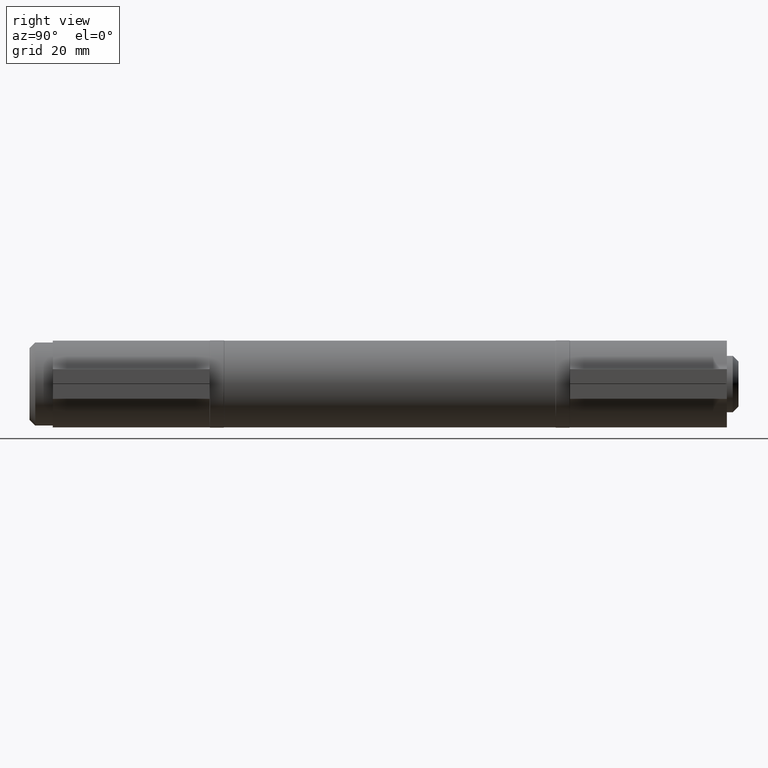
[diagram: clean part render]
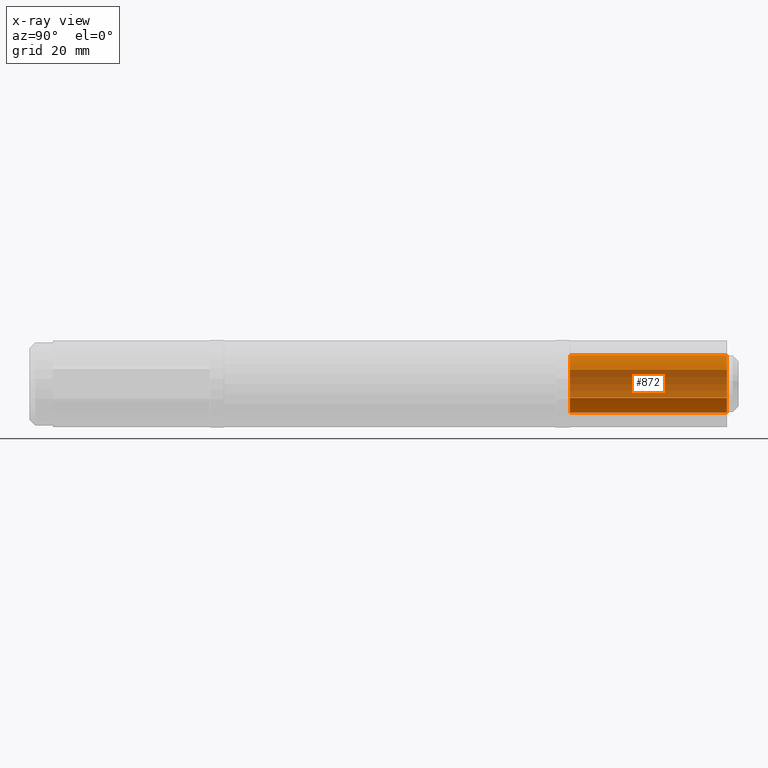
[diagram: x-ray — body ghosted, one internal face saturated and labeled with its STEP entity id]
A machine part, right view, then the same camera in x-ray: the body is ghosted and one INTERNAL B-rep face — a face not visible from any outside direction — is saturated and labeled: STEP entity #872.
In plain terms, the highlighted cylindrical surface (edge-blend (fillet) strip) has radius 5 mm, axis along (0, -1, -0).
Its self-contained STEP definition (entity closure, byte-faithful):
#72 = CARTESIAN_POINT ( 'NONE',  ( 0.000000000000000000, 13.50000000000000000, 0.000000000000000000 ) ) ;
#137 = LINE ( 'NONE', #441, #713 ) ;
#394 = EDGE_CURVE ( 'NONE', #5313, #6873, #889, .T. ) ;
#441 = CARTESIAN_POINT ( 'NONE',  ( -2.394736842105261942, 13.50000000000000000, -4.389218091763464002 ) ) ;
#713 = VECTOR ( 'NONE', #3244, 1000.000000000000000 ) ;
#739 = VERTEX_POINT ( 'NONE', #4576 ) ;
#872 = ADVANCED_FACE ( 'NONE', ( #9830 ), #3028, .F. ) ;
#889 = CIRCLE ( 'NONE', #10212, 4.999999999999999112 ) ;
#2489 = EDGE_CURVE ( 'NONE', #6873, #7554, #137, .T. ) ;
#2776 = LINE ( 'NONE', #11215, #8399 ) ;
#2916 = DIRECTION ( 'NONE',  ( -0.000000000000000000, -1.000000000000000000, -0.000000000000000000 ) ) ;
#3028 = CYLINDRICAL_SURFACE ( 'NONE', #4743, 4.999999999999999112 ) ;
#3031 = ORIENTED_EDGE ( 'NONE', *, *, #2489, .F. ) ;
#3244 = DIRECTION ( 'NONE',  ( -0.000000000000000000, -1.000000000000000000, -0.000000000000000000 ) ) ;
#3615 = ORIENTED_EDGE ( 'NONE', *, *, #394, .F. ) ;
#4251 = ORIENTED_EDGE ( 'NONE', *, *, #5183, .T. ) ;
#4576 = CARTESIAN_POINT ( 'NONE',  ( 2.394736842105258390, -13.50000000000000000, -4.389218091763465779 ) ) ;
#4676 = EDGE_LOOP ( 'NONE', ( #5243, #3031, #3615, #4251 ) ) ;
#4743 = AXIS2_PLACEMENT_3D ( 'NONE', #5553, #5627, #7491 ) ;
#5183 = EDGE_CURVE ( 'NONE', #5313, #739, #2776, .T. ) ;
#5243 = ORIENTED_EDGE ( 'NONE', *, *, #8831, .T. ) ;
#5313 = VERTEX_POINT ( 'NONE', #7458 ) ;
#5553 = CARTESIAN_POINT ( 'NONE',  ( 0.000000000000000000, 13.50000000000000000, 0.000000000000000000 ) ) ;
#5627 = DIRECTION ( 'NONE',  ( -0.000000000000000000, -1.000000000000000000, -0.000000000000000000 ) ) ;
#6763 = DIRECTION ( 'NONE',  ( 0.000000000000000000, 0.000000000000000000, 1.000000000000000000 ) ) ;
#6873 = VERTEX_POINT ( 'NONE', #11043 ) ;
#7458 = CARTESIAN_POINT ( 'NONE',  ( 2.394736842105258390, 13.50000000000000000, -4.389218091763465779 ) ) ;
#7491 = DIRECTION ( 'NONE',  ( 0.000000000000000000, 0.000000000000000000, -1.000000000000000000 ) ) ;
#7554 = VERTEX_POINT ( 'NONE', #10949 ) ;
#8283 = DIRECTION ( 'NONE',  ( 0.000000000000000000, 0.000000000000000000, 1.000000000000000000 ) ) ;
#8399 = VECTOR ( 'NONE', #10250, 1000.000000000000000 ) ;
#8553 = CARTESIAN_POINT ( 'NONE',  ( 0.000000000000000000, -13.50000000000000000, 0.000000000000000000 ) ) ;
#8831 = EDGE_CURVE ( 'NONE', #739, #7554, #10654, .T. ) ;
#9830 = FACE_OUTER_BOUND ( 'NONE', #4676, .T. ) ;
#10212 = AXIS2_PLACEMENT_3D ( 'NONE', #72, #2916, #8283 ) ;
#10250 = DIRECTION ( 'NONE',  ( -0.000000000000000000, -1.000000000000000000, -0.000000000000000000 ) ) ;
#10654 = CIRCLE ( 'NONE', #11014, 4.999999999999999112 ) ;
#10949 = CARTESIAN_POINT ( 'NONE',  ( -2.394736842105261942, -13.50000000000000000, -4.389218091763464002 ) ) ;
#11014 = AXIS2_PLACEMENT_3D ( 'NONE', #8553, #11354, #6763 ) ;
#11043 = CARTESIAN_POINT ( 'NONE',  ( -2.394736842105261942, 13.50000000000000000, -4.389218091763464002 ) ) ;
#11215 = CARTESIAN_POINT ( 'NONE',  ( 2.394736842105258390, 13.50000000000000000, -4.389218091763465779 ) ) ;
#11354 = DIRECTION ( 'NONE',  ( -0.000000000000000000, -1.000000000000000000, -0.000000000000000000 ) ) ;